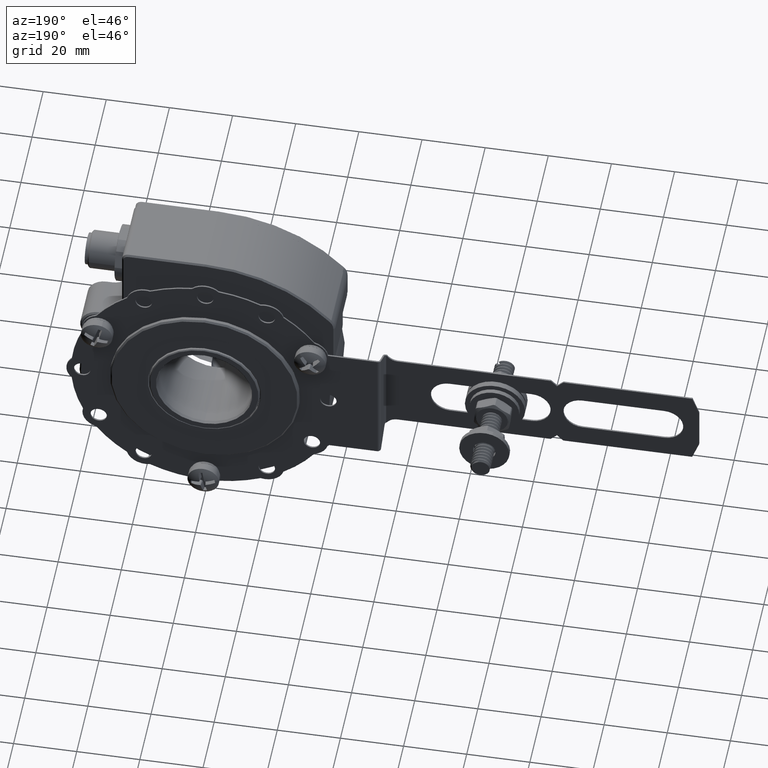
[diagram: clean part render]
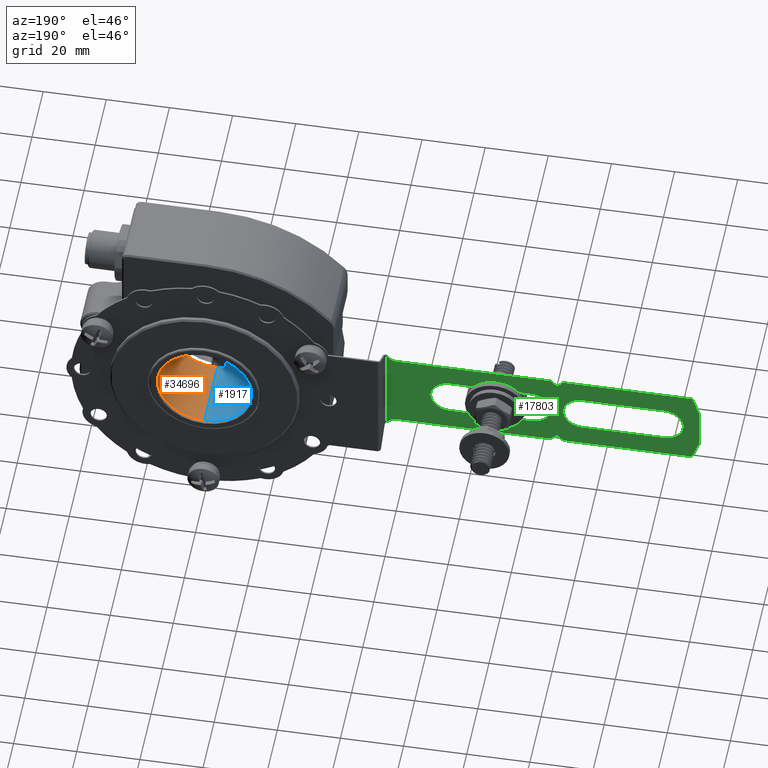
[diagram: same view with three faces highlighted in distinct colors, each labeled with its STEP entity id]
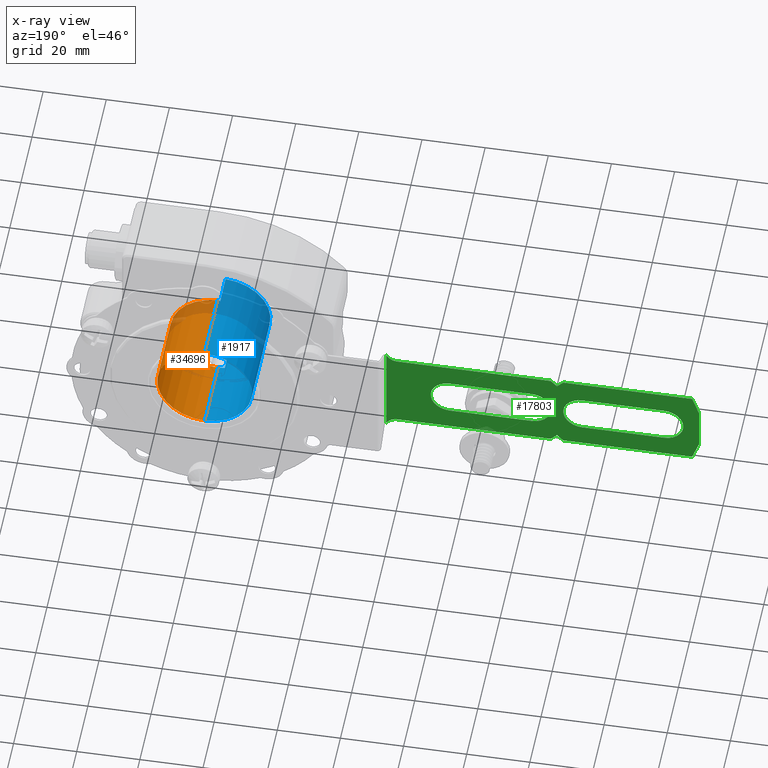
[diagram: x-ray of the same camera — body ghosted, the three highlighted faces saturated]
A machine part, auxiliary view with three faces highlighted in distinct colors.
The next image is the same camera in x-ray (body ghosted, the three faces saturated) — at least one of them is partly hidden behind the body in this view.
Their STEP definitions:

[orange] entity #34696 — the highlighted cylindrical surface (partial cylindrical patch) has radius 15 mm, axis along (-0, 1, -0).
#1490 = EDGE_CURVE ( 'NONE', #17980, #24134, #15536, .T. ) ;
#1554 = CIRCLE ( 'NONE', #9970, 15.00000000000003900 ) ;
#1938 = CARTESIAN_POINT ( 'NONE',  ( 6.388873209477782200E-015, 23.49999999999981200, 15.00000000000000000 ) ) ;
#2078 = CARTESIAN_POINT ( 'NONE',  ( 6.560508871261082500E-015, 23.49999999999980500, -15.00000000000000000 ) ) ;
#3756 = CYLINDRICAL_SURFACE ( 'NONE', #4188, 15.00000000000003900 ) ;
#4181 = DIRECTION ( 'NONE',  ( 2.595898490415523800E-017, -1.000000000000000000, 8.210640952288585300E-017 ) ) ;
#4188 = AXIS2_PLACEMENT_3D ( 'NONE', #46832, #7071, #36073 ) ;
#4723 = VECTOR ( 'NONE', #40104, 1000.000000000000000 ) ;
#4767 = VECTOR ( 'NONE', #14035, 1000.000000000000000 ) ;
#5869 = LINE ( 'NONE', #32993, #4723 ) ;
#7071 = DIRECTION ( 'NONE',  ( -2.595898490415521000E-017, 1.000000000000000000, -1.819323224170026400E-016 ) ) ;
#8027 = VERTEX_POINT ( 'NONE', #2078 ) ;
#8902 = EDGE_CURVE ( 'NONE', #24134, #8027, #1554, .T. ) ;
#9970 = AXIS2_PLACEMENT_3D ( 'NONE', #42492, #20779, #46094 ) ;
#12941 = EDGE_CURVE ( 'NONE', #26620, #17980, #38186, .T. ) ;
#14035 = DIRECTION ( 'NONE',  ( -2.595898490415521000E-017, 1.000000000000000000, -1.819323224170026400E-016 ) ) ;
#15536 = LINE ( 'NONE', #27047, #4767 ) ;
#16800 = FACE_OUTER_BOUND ( 'NONE', #34123, .T. ) ;
#17980 = VERTEX_POINT ( 'NONE', #31086 ) ;
#20779 = DIRECTION ( 'NONE',  ( -2.595898490415521000E-017, 1.000000000000000000, -1.819323224170026400E-016 ) ) ;
#24134 = VERTEX_POINT ( 'NONE', #1938 ) ;
#25886 = CARTESIAN_POINT ( 'NONE',  ( 7.569697237078203200E-015, 0.1999999999999883800, 4.420955434733134700E-015 ) ) ;
#26620 = VERTEX_POINT ( 'NONE', #31036 ) ;
#27047 = CARTESIAN_POINT ( 'NONE',  ( 5.934590973655060700E-015, 24.50000000000000700, 15.00000000000003900 ) ) ;
#29532 = DIRECTION ( 'NONE',  ( -5.551115123125768500E-017, -8.131516293641262300E-017, -1.000000000000000000 ) ) ;
#31036 = CARTESIAN_POINT ( 'NONE',  ( 6.560508871261084900E-015, 0.1999999999999871600, -14.99999999999999500 ) ) ;
#31086 = CARTESIAN_POINT ( 'NONE',  ( 6.388873209477783800E-015, 0.1999999999999896000, 15.00000000000000500 ) ) ;
#32993 = CARTESIAN_POINT ( 'NONE',  ( 6.106226635438361800E-015, 24.50000000000000000, -15.00000000000003900 ) ) ;
#34123 = EDGE_LOOP ( 'NONE', ( #36459, #39403, #46470, #41703 ) ) ;
#34696 = ADVANCED_FACE ( 'NONE', ( #16800 ), #3756, .F. ) ;
#36073 = DIRECTION ( 'NONE',  ( -5.551115123125763000E-017, -2.312964634635736500E-016, -1.000000000000000000 ) ) ;
#36459 = ORIENTED_EDGE ( 'NONE', *, *, #12941, .T. ) ;
#38186 = CIRCLE ( 'NONE', #39544, 15.00000000000003900 ) ;
#39403 = ORIENTED_EDGE ( 'NONE', *, *, #1490, .T. ) ;
#39544 = AXIS2_PLACEMENT_3D ( 'NONE', #25886, #4181, #29532 ) ;
#40104 = DIRECTION ( 'NONE',  ( -2.595898490415521000E-017, 1.000000000000000000, -1.819323224170026400E-016 ) ) ;
#41703 = ORIENTED_EDGE ( 'NONE', *, *, #41962, .F. ) ;
#41962 = EDGE_CURVE ( 'NONE', #26620, #8027, #5869, .T. ) ;
#42492 = CARTESIAN_POINT ( 'NONE',  ( 6.964852888811391600E-015, 23.49999999999980800, 1.819323224170299600E-016 ) ) ;
#46094 = DIRECTION ( 'NONE',  ( 5.551115123125763000E-017, 2.312964634635736500E-016, 1.000000000000000000 ) ) ;
#46470 = ORIENTED_EDGE ( 'NONE', *, *, #8902, .T. ) ;
#46832 = CARTESIAN_POINT ( 'NONE',  ( 6.938893903907228400E-015, 24.50000000000000400, 0.0000000000000000000 ) ) ;

[blue] entity #1917 — the highlighted cylindrical surface (partial cylindrical patch) has radius 15 mm, axis along (-0, 1, -0).
#219 = VERTEX_POINT ( 'NONE', #1522 ) ;
#302 = AXIS2_PLACEMENT_3D ( 'NONE', #42175, #20481, #45786 ) ;
#832 = CIRCLE ( 'NONE', #43007, 15.00000000000003900 ) ;
#1275 = EDGE_CURVE ( 'NONE', #42471, #26620, #832, .T. ) ;
#1490 = EDGE_CURVE ( 'NONE', #17980, #24134, #15536, .T. ) ;
#1522 = CARTESIAN_POINT ( 'NONE',  ( -0.8381259559996437900, -1.400000000000005500, 14.97656652513789800 ) ) ;
#1620 = EDGE_CURVE ( 'NONE', #10822, #34067, #10991, .T. ) ;
#1917 = ADVANCED_FACE ( 'NONE', ( #9275 ), #17765, .F. ) ;
#1938 = CARTESIAN_POINT ( 'NONE',  ( 6.388873209477782200E-015, 23.49999999999981200, 15.00000000000000000 ) ) ;
#2078 = CARTESIAN_POINT ( 'NONE',  ( 6.560508871261082500E-015, 23.49999999999980500, -15.00000000000000000 ) ) ;
#2921 = LINE ( 'NONE', #6645, #11394 ) ;
#3501 = DIRECTION ( 'NONE',  ( 2.595898490415521000E-017, -1.000000000000000000, 1.819323224170026400E-016 ) ) ;
#3647 = CARTESIAN_POINT ( 'NONE',  ( -2.250000000000002200, -9.500000000000108400, -14.83028994996392800 ) ) ;
#4437 = VERTEX_POINT ( 'NONE', #14585 ) ;
#4601 = CARTESIAN_POINT ( 'NONE',  ( -0.8381259559996447900, 0.1999999999999849100, 14.97656652513789800 ) ) ;
#4723 = VECTOR ( 'NONE', #40104, 1000.000000000000000 ) ;
#4767 = VECTOR ( 'NONE', #14035, 1000.000000000000000 ) ;
#5869 = LINE ( 'NONE', #32993, #4723 ) ;
#6200 = EDGE_LOOP ( 'NONE', ( #28331, #39322, #45952, #15021, #25192, #17399, #7150, #45506, #29615, #37783, #13118, #15205 ) ) ;
#6645 = CARTESIAN_POINT ( 'NONE',  ( -0.7999999999999898300, 24.50000000000000000, 14.97865147468227000 ) ) ;
#6844 = CIRCLE ( 'NONE', #28958, 15.00000000000003900 ) ;
#6937 = CARTESIAN_POINT ( 'NONE',  ( -0.8381259559996597800, 0.1999999999999918500, -14.97656652513788900 ) ) ;
#7139 = CARTESIAN_POINT ( 'NONE',  ( -0.8381259559996593300, -0.6000000000000033100, -14.97656652513788700 ) ) ;
#7150 = ORIENTED_EDGE ( 'NONE', *, *, #22777, .T. ) ;
#8027 = VERTEX_POINT ( 'NONE', #2078 ) ;
#8817 = DIRECTION ( 'NONE',  ( 2.595898490415521000E-017, -1.000000000000000000, 1.819323224170038300E-016 ) ) ;
#9004 = CIRCLE ( 'NONE', #42390, 15.00000000000003900 ) ;
#9275 = FACE_OUTER_BOUND ( 'NONE', #6200, .T. ) ;
#10822 = VERTEX_POINT ( 'NONE', #43581 ) ;
#10991 = CIRCLE ( 'NONE', #39669, 15.00000000000003900 ) ;
#11394 = VECTOR ( 'NONE', #39284, 1000.000000000000000 ) ;
#11462 = CARTESIAN_POINT ( 'NONE',  ( 7.569697237078203200E-015, 0.1999999999999883800, 4.420955434733134700E-015 ) ) ;
#13118 = ORIENTED_EDGE ( 'NONE', *, *, #41962, .T. ) ;
#14035 = DIRECTION ( 'NONE',  ( -2.595898490415521000E-017, 1.000000000000000000, -1.819323224170026400E-016 ) ) ;
#14585 = CARTESIAN_POINT ( 'NONE',  ( -0.7999999999999893900, -1.400000000000005500, 14.97865147468227300 ) ) ;
#14684 = EDGE_CURVE ( 'NONE', #4437, #10822, #2921, .T. ) ;
#15021 = ORIENTED_EDGE ( 'NONE', *, *, #27462, .F. ) ;
#15114 = DIRECTION ( 'NONE',  ( -5.551115123125768500E-017, -8.131516293641262300E-017, -1.000000000000000000 ) ) ;
#15205 = ORIENTED_EDGE ( 'NONE', *, *, #44370, .T. ) ;
#15536 = LINE ( 'NONE', #27047, #4767 ) ;
#16039 = EDGE_CURVE ( 'NONE', #42471, #36789, #34546, .T. ) ;
#16080 = VECTOR ( 'NONE', #44028, 1000.000000000000000 ) ;
#16520 = EDGE_CURVE ( 'NONE', #36789, #25853, #9004, .T. ) ;
#17399 = ORIENTED_EDGE ( 'NONE', *, *, #1620, .T. ) ;
#17765 = CYLINDRICAL_SURFACE ( 'NONE', #43626, 15.00000000000003900 ) ;
#17980 = VERTEX_POINT ( 'NONE', #31086 ) ;
#18207 = DIRECTION ( 'NONE',  ( -2.595898490415521000E-017, 1.000000000000000000, -1.819323224170026400E-016 ) ) ;
#20481 = DIRECTION ( 'NONE',  ( 2.595898490415521000E-017, -1.000000000000000000, 1.819323224170026400E-016 ) ) ;
#20864 = DIRECTION ( 'NONE',  ( -2.595898490415521000E-017, 1.000000000000000000, -1.819323224170026400E-016 ) ) ;
#21296 = CIRCLE ( 'NONE', #302, 15.00000000000003900 ) ;
#22312 = CARTESIAN_POINT ( 'NONE',  ( -0.8381259559996437900, -0.6000000000000103000, 14.97656652513789900 ) ) ;
#22777 = EDGE_CURVE ( 'NONE', #34067, #25853, #25060, .T. ) ;
#24134 = VERTEX_POINT ( 'NONE', #1938 ) ;
#24808 = DIRECTION ( 'NONE',  ( -5.551115123125763000E-017, -2.312964634635736500E-016, -1.000000000000000000 ) ) ;
#24924 = VECTOR ( 'NONE', #3501, 1000.000000000000000 ) ;
#25060 = LINE ( 'NONE', #42817, #31303 ) ;
#25089 = CIRCLE ( 'NONE', #41953, 15.00000000000003900 ) ;
#25192 = ORIENTED_EDGE ( 'NONE', *, *, #14684, .T. ) ;
#25853 = VERTEX_POINT ( 'NONE', #26169 ) ;
#26169 = CARTESIAN_POINT ( 'NONE',  ( -2.249999999999999100, 0.09999999999997510900, -14.83028994996392500 ) ) ;
#26620 = VERTEX_POINT ( 'NONE', #31036 ) ;
#27047 = CARTESIAN_POINT ( 'NONE',  ( 5.934590973655060700E-015, 24.50000000000000700, 15.00000000000003900 ) ) ;
#27462 = EDGE_CURVE ( 'NONE', #4437, #219, #21296, .T. ) ;
#28331 = ORIENTED_EDGE ( 'NONE', *, *, #1490, .F. ) ;
#28958 = AXIS2_PLACEMENT_3D ( 'NONE', #42581, #20864, #46183 ) ;
#29023 = EDGE_CURVE ( 'NONE', #17980, #46850, #25089, .T. ) ;
#29615 = ORIENTED_EDGE ( 'NONE', *, *, #16039, .F. ) ;
#29642 = CARTESIAN_POINT ( 'NONE',  ( -0.8381259559996597800, 0.1000000000000028600, -14.97656652513788500 ) ) ;
#30541 = CARTESIAN_POINT ( 'NONE',  ( 7.821499390648511400E-015, -9.500000000000081700, 6.185698962178092800E-015 ) ) ;
#31036 = CARTESIAN_POINT ( 'NONE',  ( 6.560508871261084900E-015, 0.1999999999999871600, -14.99999999999999500 ) ) ;
#31086 = CARTESIAN_POINT ( 'NONE',  ( 6.388873209477783800E-015, 0.1999999999999896000, 15.00000000000000500 ) ) ;
#31303 = VECTOR ( 'NONE', #35355, 1000.000000000000000 ) ;
#32114 = CARTESIAN_POINT ( 'NONE',  ( 6.938893903907228400E-015, 24.50000000000000400, 0.0000000000000000000 ) ) ;
#32993 = CARTESIAN_POINT ( 'NONE',  ( 6.106226635438361800E-015, 24.50000000000000000, -15.00000000000003900 ) ) ;
#33055 = CARTESIAN_POINT ( 'NONE',  ( 7.569697237078203200E-015, 0.1999999999999883800, 4.420955434733134700E-015 ) ) ;
#33821 = DIRECTION ( 'NONE',  ( -1.337818744673313600E-014, -8.131516293641262300E-017, -1.000000000000000000 ) ) ;
#34067 = VERTEX_POINT ( 'NONE', #3647 ) ;
#34181 = DIRECTION ( 'NONE',  ( -5.551115123125763000E-017, -2.312964634635736500E-016, -1.000000000000000000 ) ) ;
#34546 = LINE ( 'NONE', #7139, #24924 ) ;
#35355 = DIRECTION ( 'NONE',  ( -2.595898490415521000E-017, 1.000000000000000000, -1.819323224170026400E-016 ) ) ;
#35738 = DIRECTION ( 'NONE',  ( -2.595898490415521000E-017, 1.000000000000000000, -1.819323224170026400E-016 ) ) ;
#36500 = LINE ( 'NONE', #22312, #16080 ) ;
#36789 = VERTEX_POINT ( 'NONE', #29642 ) ;
#36827 = DIRECTION ( 'NONE',  ( 2.595898490415523800E-017, -1.000000000000000000, 8.210640952288585300E-017 ) ) ;
#37783 = ORIENTED_EDGE ( 'NONE', *, *, #1275, .T. ) ;
#39284 = DIRECTION ( 'NONE',  ( 2.595898490415521000E-017, -1.000000000000000000, 1.819323224170026400E-016 ) ) ;
#39322 = ORIENTED_EDGE ( 'NONE', *, *, #29023, .T. ) ;
#39669 = AXIS2_PLACEMENT_3D ( 'NONE', #30541, #8817, #34181 ) ;
#39923 = CARTESIAN_POINT ( 'NONE',  ( 7.572293135568616500E-015, 0.09999999999999939500, 4.439148666974812100E-015 ) ) ;
#40104 = DIRECTION ( 'NONE',  ( -2.595898490415521000E-017, 1.000000000000000000, -1.819323224170026400E-016 ) ) ;
#41660 = EDGE_CURVE ( 'NONE', #219, #46850, #36500, .T. ) ;
#41953 = AXIS2_PLACEMENT_3D ( 'NONE', #11462, #36827, #15114 ) ;
#41962 = EDGE_CURVE ( 'NONE', #26620, #8027, #5869, .T. ) ;
#42175 = CARTESIAN_POINT ( 'NONE',  ( 7.611231612924849500E-015, -1.400000000000001900, 4.712047150600318700E-015 ) ) ;
#42390 = AXIS2_PLACEMENT_3D ( 'NONE', #39923, #18207, #43578 ) ;
#42471 = VERTEX_POINT ( 'NONE', #6937 ) ;
#42581 = CARTESIAN_POINT ( 'NONE',  ( 6.964852888811391600E-015, 23.49999999999980800, 1.819323224170299600E-016 ) ) ;
#42817 = CARTESIAN_POINT ( 'NONE',  ( -2.250000000000003600, 24.50000000000000700, -14.83028994996393000 ) ) ;
#43007 = AXIS2_PLACEMENT_3D ( 'NONE', #33055, #43813, #33821 ) ;
#43578 = DIRECTION ( 'NONE',  ( 5.551115123125763000E-017, 1.816038638913215200E-016, 1.000000000000000000 ) ) ;
#43581 = CARTESIAN_POINT ( 'NONE',  ( -0.7999999999999890500, -9.500000000000081700, 14.97865147468226400 ) ) ;
#43626 = AXIS2_PLACEMENT_3D ( 'NONE', #32114, #35738, #24808 ) ;
#43813 = DIRECTION ( 'NONE',  ( 2.595898490415523800E-017, -1.000000000000000000, 8.210640952288585300E-017 ) ) ;
#44028 = DIRECTION ( 'NONE',  ( -2.595898490415521000E-017, 1.000000000000000000, -1.819323224170026400E-016 ) ) ;
#44370 = EDGE_CURVE ( 'NONE', #8027, #24134, #6844, .T. ) ;
#45506 = ORIENTED_EDGE ( 'NONE', *, *, #16520, .F. ) ;
#45786 = DIRECTION ( 'NONE',  ( -5.551115123125763000E-017, -1.879283765641536000E-016, -1.000000000000000000 ) ) ;
#45952 = ORIENTED_EDGE ( 'NONE', *, *, #41660, .F. ) ;
#46183 = DIRECTION ( 'NONE',  ( 5.551115123125763000E-017, 2.312964634635736500E-016, 1.000000000000000000 ) ) ;
#46850 = VERTEX_POINT ( 'NONE', #4601 ) ;

[green] entity #17803 — the highlighted planar face has unit normal (-0, 1, -0).
#22 = VECTOR ( 'NONE', #21317, 1000.000000000000000 ) ;
#178 = ORIENTED_EDGE ( 'NONE', *, *, #8419, .F. ) ;
#334 = DIRECTION ( 'NONE',  ( 6.568586551522580000E-046, -1.000000000000000000, -3.366400607655322300E-046 ) ) ;
#423 = FACE_OUTER_BOUND ( 'NONE', #31876, .T. ) ;
#868 = VERTEX_POINT ( 'NONE', #25835 ) ;
#1216 = CARTESIAN_POINT ( 'NONE',  ( -59.50000000000002100, 14.49999999999999300, 13.00000000000001800 ) ) ;
#1608 = ORIENTED_EDGE ( 'NONE', *, *, #10131, .T. ) ;
#1811 = CARTESIAN_POINT ( 'NONE',  ( -56.03589838486225700, 14.50000000000000500, 14.99999999999996400 ) ) ;
#1901 = VERTEX_POINT ( 'NONE', #35575 ) ;
#2016 = CARTESIAN_POINT ( 'NONE',  ( -112.0000000000000100, 14.49999999999999300, 13.00000000000006400 ) ) ;
#2478 = CARTESIAN_POINT ( 'NONE',  ( -144.0000000000000900, 14.50000000000000500, 6.000000000000039100 ) ) ;
#2800 = CARTESIAN_POINT ( 'NONE',  ( -59.50000000000003600, 14.49999999999997900, -16.99999999999997900 ) ) ;
#3242 = LINE ( 'NONE', #8646, #21391 ) ;
#3249 = DIRECTION ( 'NONE',  ( -1.000000000000000000, 1.972152263052522900E-031, 3.191891195797323600E-016 ) ) ;
#3254 = DIRECTION ( 'NONE',  ( 6.568586551522580000E-046, -1.000000000000000000, -3.366400607655322300E-046 ) ) ;
#3316 = CARTESIAN_POINT ( 'NONE',  ( -144.0000000000000300, 14.50000000000000500, -5.999999999999944000 ) ) ;
#3416 = LINE ( 'NONE', #23793, #31201 ) ;
#3674 = CARTESIAN_POINT ( 'NONE',  ( -118.0000000000000300, 14.50000000000000500, -6.000000000000007100 ) ) ;
#4347 = LINE ( 'NONE', #34662, #32166 ) ;
#4405 = ORIENTED_EDGE ( 'NONE', *, *, #16087, .T. ) ;
#4436 = VECTOR ( 'NONE', #44774, 1000.000000000000000 ) ;
#4742 = DIRECTION ( 'NONE',  ( 2.914335439641034400E-016, 1.156482317317872200E-016, 1.000000000000000000 ) ) ;
#5120 = ORIENTED_EDGE ( 'NONE', *, *, #15381, .T. ) ;
#5136 = CARTESIAN_POINT ( 'NONE',  ( -55.50000000000002100, 14.50000000000000500, 12.99999999999996300 ) ) ;
#5453 = ORIENTED_EDGE ( 'NONE', *, *, #33193, .T. ) ;
#5547 = DIRECTION ( 'NONE',  ( 6.568586551522580000E-046, -1.000000000000000000, -3.366400607655322300E-046 ) ) ;
#5789 = EDGE_CURVE ( 'NONE', #9356, #46977, #3416, .T. ) ;
#6246 = DIRECTION ( 'NONE',  ( 6.568586551522580000E-046, -1.000000000000000000, -3.366400607655322300E-046 ) ) ;
#6437 = DIRECTION ( 'NONE',  ( 0.0000000000000000000, 0.0000000000000000000, -1.000000000000000000 ) ) ;
#6505 = CARTESIAN_POINT ( 'NONE',  ( -155.0000000000000300, 14.50000000000000500, -6.999999999999941400 ) ) ;
#6586 = DIRECTION ( 'NONE',  ( -0.7071067811865474600, 8.177564888978012700E-017, 0.7071067811865474600 ) ) ;
#6983 = DIRECTION ( 'NONE',  ( 1.000000000000000000, -1.972152263052522900E-031, -3.191891195797323600E-016 ) ) ;
#7052 = LINE ( 'NONE', #13726, #34819 ) ;
#7390 = ORIENTED_EDGE ( 'NONE', *, *, #17920, .T. ) ;
#7718 = VERTEX_POINT ( 'NONE', #18426 ) ;
#7826 = CARTESIAN_POINT ( 'NONE',  ( -101.9999999999999900, 14.49999999999999300, 6.000000000000025800 ) ) ;
#8111 = CARTESIAN_POINT ( 'NONE',  ( -152.8161785944028800, 14.50000000000002000, 13.00000000000004800 ) ) ;
#8419 = EDGE_CURVE ( 'NONE', #1901, #14201, #36734, .T. ) ;
#8646 = CARTESIAN_POINT ( 'NONE',  ( -155.0000000000000600, 14.50000000000000500, 14.99999999999999500 ) ) ;
#9005 = VERTEX_POINT ( 'NONE', #6505 ) ;
#9263 = AXIS2_PLACEMENT_3D ( 'NONE', #22038, #334, #25665 ) ;
#9356 = VERTEX_POINT ( 'NONE', #37528 ) ;
#9379 = DIRECTION ( 'NONE',  ( -0.7071067811865479100, -8.177564888977976900E-017, -0.7071067811865470200 ) ) ;
#9583 = VERTEX_POINT ( 'NONE', #13746 ) ;
#9656 = LINE ( 'NONE', #46650, #28915 ) ;
#10131 = EDGE_CURVE ( 'NONE', #40987, #33713, #20753, .T. ) ;
#10237 = AXIS2_PLACEMENT_3D ( 'NONE', #19201, #12068, #37422 ) ;
#10337 = VERTEX_POINT ( 'NONE', #3674 ) ;
#11164 = VECTOR ( 'NONE', #19029, 1000.000000000000100 ) ;
#11178 = EDGE_CURVE ( 'NONE', #868, #35926, #7052, .T. ) ;
#11442 = LINE ( 'NONE', #12722, #29581 ) ;
#11680 = LINE ( 'NONE', #37218, #28686 ) ;
#11946 = ORIENTED_EDGE ( 'NONE', *, *, #23974, .F. ) ;
#12068 = DIRECTION ( 'NONE',  ( -3.530871564709996100E-032, 1.000000000000000000, -1.156482317317872200E-016 ) ) ;
#12662 = AXIS2_PLACEMENT_3D ( 'NONE', #27250, #5547, #30917 ) ;
#12722 = CARTESIAN_POINT ( 'NONE',  ( -69.74999999999997200, 14.49999999999999300, 29.24999999999998200 ) ) ;
#12758 = VERTEX_POINT ( 'NONE', #2478 ) ;
#12968 = DIRECTION ( 'NONE',  ( -1.000000000000000000, 1.972152263052522900E-031, 3.191891195797323600E-016 ) ) ;
#13042 = LINE ( 'NONE', #40493, #31203 ) ;
#13069 = LINE ( 'NONE', #28517, #21592 ) ;
#13726 = CARTESIAN_POINT ( 'NONE',  ( -84.75000000000002800, 14.49999999999999300, -14.24999999999999600 ) ) ;
#13746 = CARTESIAN_POINT ( 'NONE',  ( -155.0000000000000600, 14.50000000000000500, 6.999999999999932500 ) ) ;
#14113 = LINE ( 'NONE', #33861, #4436 ) ;
#14201 = VERTEX_POINT ( 'NONE', #21436 ) ;
#15381 = EDGE_CURVE ( 'NONE', #10337, #32973, #45353, .T. ) ;
#15497 = VERTEX_POINT ( 'NONE', #7826 ) ;
#15925 = DIRECTION ( 'NONE',  ( 6.568586551522580000E-046, -1.000000000000000000, -3.366400607655322300E-046 ) ) ;
#16087 = EDGE_CURVE ( 'NONE', #33145, #36349, #23767, .T. ) ;
#16949 = CARTESIAN_POINT ( 'NONE',  ( -55.50000000000002800, 14.49999999999999300, -6.000000000000025800 ) ) ;
#17344 = VERTEX_POINT ( 'NONE', #44900 ) ;
#17535 = VECTOR ( 'NONE', #20614, 1000.000000000000000 ) ;
#17603 = ORIENTED_EDGE ( 'NONE', *, *, #33158, .T. ) ;
#17641 = DIRECTION ( 'NONE',  ( 1.000000000000000000, -1.972152263052522900E-031, -3.191891195797323600E-016 ) ) ;
#17764 = EDGE_CURVE ( 'NONE', #22793, #9583, #20842, .T. ) ;
#17803 = ADVANCED_FACE ( 'NONE', ( #423, #31625, #29313 ), #33780, .T. ) ;
#17920 = EDGE_CURVE ( 'NONE', #15497, #46350, #42936, .T. ) ;
#18177 = CARTESIAN_POINT ( 'NONE',  ( -117.9999999999999900, 14.50000000000000500, 6.000000000000031100 ) ) ;
#18251 = VERTEX_POINT ( 'NONE', #3316 ) ;
#18426 = CARTESIAN_POINT ( 'NONE',  ( -108.0000000000000300, 14.49999999999997900, -12.99999999999996100 ) ) ;
#18503 = AXIS2_PLACEMENT_3D ( 'NONE', #27930, #6246, #31609 ) ;
#18835 = ORIENTED_EDGE ( 'NONE', *, *, #24180, .F. ) ;
#18945 = EDGE_CURVE ( 'NONE', #9583, #9005, #3242, .T. ) ;
#19029 = DIRECTION ( 'NONE',  ( -0.3420201433256674900, -1.086737899652992200E-016, -0.9396926207859088700 ) ) ;
#19066 = CARTESIAN_POINT ( 'NONE',  ( -107.9999999999999900, 14.49999999999999300, 13.00000000000003400 ) ) ;
#19201 = CARTESIAN_POINT ( 'NONE',  ( -55.50000000000002100, 14.50000000000000500, 14.99999999999996400 ) ) ;
#19289 = LINE ( 'NONE', #32108, #22 ) ;
#19668 = EDGE_CURVE ( 'NONE', #46977, #44334, #11680, .T. ) ;
#20340 = ORIENTED_EDGE ( 'NONE', *, *, #30501, .T. ) ;
#20614 = DIRECTION ( 'NONE',  ( 1.000000000000000000, -1.972152263052522900E-031, -3.191891195797323600E-016 ) ) ;
#20753 = CIRCLE ( 'NONE', #18503, 6.000000000000000900 ) ;
#20841 = DIRECTION ( 'NONE',  ( -2.914335439641034400E-016, -1.156482317317872200E-016, -1.000000000000000000 ) ) ;
#20842 = LINE ( 'NONE', #8111, #11164 ) ;
#20847 = ORIENTED_EDGE ( 'NONE', *, *, #19668, .F. ) ;
#21153 = CARTESIAN_POINT ( 'NONE',  ( -55.50000000000004300, 14.49999999999997900, -12.99999999999997700 ) ) ;
#21317 = DIRECTION ( 'NONE',  ( 1.000000000000000000, -1.972152263052522900E-031, -3.191891195797323600E-016 ) ) ;
#21391 = VECTOR ( 'NONE', #20841, 1000.000000000000000 ) ;
#21436 = CARTESIAN_POINT ( 'NONE',  ( -112.0000000000000300, 14.49999999999997900, -12.99999999999995900 ) ) ;
#21592 = VECTOR ( 'NONE', #6983, 1000.000000000000000 ) ;
#21628 = ORIENTED_EDGE ( 'NONE', *, *, #28816, .T. ) ;
#22038 = CARTESIAN_POINT ( 'NONE',  ( -59.50000000000002100, 14.49999999999999300, 17.00000000000002100 ) ) ;
#22793 = VERTEX_POINT ( 'NONE', #25056 ) ;
#23171 = CARTESIAN_POINT ( 'NONE',  ( -75.99999999999998600, 14.49999999999999300, 6.000000000000018700 ) ) ;
#23223 = VECTOR ( 'NONE', #9379, 1000.000000000000100 ) ;
#23378 = CIRCLE ( 'NONE', #40451, 4.000000000000003600 ) ;
#23638 = DIRECTION ( 'NONE',  ( 1.000000000000000000, -1.972152263052522900E-031, -3.191891195797323600E-016 ) ) ;
#23713 = CIRCLE ( 'NONE', #41213, 6.000000000000000900 ) ;
#23767 = CIRCLE ( 'NONE', #9263, 4.000000000000005300 ) ;
#23793 = CARTESIAN_POINT ( 'NONE',  ( -55.50000000000004300, 14.49999999999997900, -14.99999999999997900 ) ) ;
#23974 = EDGE_CURVE ( 'NONE', #9005, #1901, #13042, .T. ) ;
#24009 = EDGE_CURVE ( 'NONE', #46789, #7718, #30050, .T. ) ;
#24115 = AXIS2_PLACEMENT_3D ( 'NONE', #24974, #3254, #28588 ) ;
#24180 = EDGE_CURVE ( 'NONE', #44804, #868, #32900, .T. ) ;
#24338 = EDGE_CURVE ( 'NONE', #18251, #10337, #37977, .T. ) ;
#24933 = EDGE_LOOP ( 'NONE', ( #44871, #7390, #27194, #1608 ) ) ;
#24974 = CARTESIAN_POINT ( 'NONE',  ( -118.0000000000000100, 14.50000000000000500, -2.145058162183871600E-015 ) ) ;
#25056 = CARTESIAN_POINT ( 'NONE',  ( -152.8161785944028800, 14.50000000000002000, 13.00000000000004800 ) ) ;
#25665 = DIRECTION ( 'NONE',  ( 0.0000000000000000000, 0.0000000000000000000, -1.000000000000000000 ) ) ;
#25835 = CARTESIAN_POINT ( 'NONE',  ( -110.0000000000000400, 14.49999999999999300, 11.00000000000003200 ) ) ;
#26072 = ORIENTED_EDGE ( 'NONE', *, *, #5789, .F. ) ;
#26584 = ORIENTED_EDGE ( 'NONE', *, *, #24338, .T. ) ;
#26827 = DIRECTION ( 'NONE',  ( 1.000000000000000000, -1.972152263052522900E-031, -3.191891195797323600E-016 ) ) ;
#26869 = DIRECTION ( 'NONE',  ( 1.000000000000000000, -1.972152263052522900E-031, -3.191891195797323600E-016 ) ) ;
#27194 = ORIENTED_EDGE ( 'NONE', *, *, #44576, .T. ) ;
#27250 = CARTESIAN_POINT ( 'NONE',  ( -102.0000000000000100, 14.49999999999999300, -7.030039470534558400E-015 ) ) ;
#27315 = VECTOR ( 'NONE', #26827, 1000.000000000000000 ) ;
#27621 = VECTOR ( 'NONE', #26869, 1000.000000000000000 ) ;
#27930 = CARTESIAN_POINT ( 'NONE',  ( -76.00000000000001400, 14.49999999999999300, 1.278744151902447900E-014 ) ) ;
#28115 = DIRECTION ( 'NONE',  ( 6.568586551522580000E-046, -1.000000000000000000, -3.366400607655322300E-046 ) ) ;
#28362 = ORIENTED_EDGE ( 'NONE', *, *, #24009, .F. ) ;
#28517 = CARTESIAN_POINT ( 'NONE',  ( -55.50000000000002100, 14.50000000000000500, 14.99999999999996400 ) ) ;
#28588 = DIRECTION ( 'NONE',  ( 0.0000000000000000000, 0.0000000000000000000, -1.000000000000000000 ) ) ;
#28686 = VECTOR ( 'NONE', #4742, 1000.000000000000000 ) ;
#28816 = EDGE_CURVE ( 'NONE', #9356, #17344, #23378, .T. ) ;
#28915 = VECTOR ( 'NONE', #3249, 1000.000000000000000 ) ;
#29313 = FACE_BOUND ( 'NONE', #24933, .T. ) ;
#29581 = VECTOR ( 'NONE', #33644, 1000.000000000000000 ) ;
#29837 = ORIENTED_EDGE ( 'NONE', *, *, #11178, .F. ) ;
#30050 = LINE ( 'NONE', #40636, #40843 ) ;
#30501 = EDGE_CURVE ( 'NONE', #36349, #44334, #13069, .T. ) ;
#30917 = DIRECTION ( 'NONE',  ( 0.0000000000000000000, 0.0000000000000000000, -1.000000000000000000 ) ) ;
#31201 = VECTOR ( 'NONE', #23638, 1000.000000000000000 ) ;
#31203 = VECTOR ( 'NONE', #44119, 1000.000000000000100 ) ;
#31609 = DIRECTION ( 'NONE',  ( 0.0000000000000000000, 0.0000000000000000000, -1.000000000000000000 ) ) ;
#31625 = FACE_BOUND ( 'NONE', #36988, .T. ) ;
#31876 = EDGE_LOOP ( 'NONE', ( #40368, #178, #11946, #37230, #43505, #36190, #29837, #18835, #17603, #4405, #20340, #20847, #26072, #21628, #35864, #28362 ) ) ;
#32108 = CARTESIAN_POINT ( 'NONE',  ( -55.50000000000002800, 14.49999999999999300, -6.000000000000025800 ) ) ;
#32166 = VECTOR ( 'NONE', #12968, 1000.000000000000000 ) ;
#32838 = CARTESIAN_POINT ( 'NONE',  ( -109.9999999999999700, 14.49999999999997900, -10.99999999999995900 ) ) ;
#32900 = LINE ( 'NONE', #45495, #23223 ) ;
#32973 = VERTEX_POINT ( 'NONE', #18177 ) ;
#33145 = VERTEX_POINT ( 'NONE', #1216 ) ;
#33158 = EDGE_CURVE ( 'NONE', #44804, #33145, #14113, .T. ) ;
#33193 = EDGE_CURVE ( 'NONE', #12758, #18251, #23713, .T. ) ;
#33346 = DIRECTION ( 'NONE',  ( 0.7071067811865476800, -8.177564888978013900E-017, -0.7071067811865474600 ) ) ;
#33644 = DIRECTION ( 'NONE',  ( 0.7071067811865481300, 8.177564888977979400E-017, 0.7071067811865470200 ) ) ;
#33713 = VERTEX_POINT ( 'NONE', #23171 ) ;
#33780 = PLANE ( 'NONE',  #10237 ) ;
#33861 = CARTESIAN_POINT ( 'NONE',  ( -55.50000000000002100, 14.50000000000000500, 12.99999999999996300 ) ) ;
#33882 = CARTESIAN_POINT ( 'NONE',  ( -55.50000000000004300, 14.49999999999997900, -12.99999999999997700 ) ) ;
#34433 = EDGE_CURVE ( 'NONE', #32973, #12758, #4347, .T. ) ;
#34662 = CARTESIAN_POINT ( 'NONE',  ( -55.50000000000003600, 14.49999999999999300, 6.000000000000012400 ) ) ;
#34819 = VECTOR ( 'NONE', #6586, 1000.000000000000100 ) ;
#35125 = CARTESIAN_POINT ( 'NONE',  ( -56.00000000000002100, 14.50000000000000500, 14.99999999999996400 ) ) ;
#35505 = ORIENTED_EDGE ( 'NONE', *, *, #34433, .T. ) ;
#35575 = CARTESIAN_POINT ( 'NONE',  ( -152.8161785944027700, 14.49999999999999300, -13.00000000000000400 ) ) ;
#35864 = ORIENTED_EDGE ( 'NONE', *, *, #38784, .F. ) ;
#35926 = VERTEX_POINT ( 'NONE', #2016 ) ;
#36190 = ORIENTED_EDGE ( 'NONE', *, *, #43074, .T. ) ;
#36349 = VERTEX_POINT ( 'NONE', #1811 ) ;
#36478 = CARTESIAN_POINT ( 'NONE',  ( -102.0000000000000300, 14.49999999999999300, -6.000000000000012400 ) ) ;
#36734 = LINE ( 'NONE', #21153, #46369 ) ;
#36972 = LINE ( 'NONE', #5136, #27315 ) ;
#36988 = EDGE_LOOP ( 'NONE', ( #35505, #5453, #26584, #5120 ) ) ;
#37218 = CARTESIAN_POINT ( 'NONE',  ( -56.00000000000002100, 14.50000000000000500, 14.99999999999996400 ) ) ;
#37230 = ORIENTED_EDGE ( 'NONE', *, *, #18945, .F. ) ;
#37400 = CARTESIAN_POINT ( 'NONE',  ( -56.00000000000004300, 14.49999999999997900, -14.99999999999997900 ) ) ;
#37422 = DIRECTION ( 'NONE',  ( 2.914335439641034400E-016, 1.156482317317872200E-016, 1.000000000000000000 ) ) ;
#37528 = CARTESIAN_POINT ( 'NONE',  ( -56.03589838486227800, 14.49999999999997900, -14.99999999999997900 ) ) ;
#37660 = CARTESIAN_POINT ( 'NONE',  ( -144.0000000000000600, 14.50000000000000500, 6.130418769514382400E-014 ) ) ;
#37977 = LINE ( 'NONE', #16949, #17535 ) ;
#38784 = EDGE_CURVE ( 'NONE', #7718, #17344, #46905, .T. ) ;
#40368 = ORIENTED_EDGE ( 'NONE', *, *, #46455, .F. ) ;
#40451 = AXIS2_PLACEMENT_3D ( 'NONE', #2800, #28115, #6437 ) ;
#40493 = CARTESIAN_POINT ( 'NONE',  ( -152.8161785944027700, 14.49999999999999300, -13.00000000000000400 ) ) ;
#40636 = CARTESIAN_POINT ( 'NONE',  ( -95.75000000000002800, 14.49999999999997900, -25.24999999999995000 ) ) ;
#40843 = VECTOR ( 'NONE', #33346, 1000.000000000000000 ) ;
#40987 = VERTEX_POINT ( 'NONE', #46921 ) ;
#41213 = AXIS2_PLACEMENT_3D ( 'NONE', #37660, #15925, #41313 ) ;
#41313 = DIRECTION ( 'NONE',  ( 0.0000000000000000000, 0.0000000000000000000, -1.000000000000000000 ) ) ;
#42936 = CIRCLE ( 'NONE', #12662, 6.000000000000000000 ) ;
#43074 = EDGE_CURVE ( 'NONE', #22793, #35926, #36972, .T. ) ;
#43505 = ORIENTED_EDGE ( 'NONE', *, *, #17764, .F. ) ;
#44119 = DIRECTION ( 'NONE',  ( 0.3420201433256668800, -1.086737899652993300E-016, -0.9396926207859090900 ) ) ;
#44334 = VERTEX_POINT ( 'NONE', #35125 ) ;
#44576 = EDGE_CURVE ( 'NONE', #46350, #40987, #19289, .T. ) ;
#44578 = EDGE_CURVE ( 'NONE', #33713, #15497, #9656, .T. ) ;
#44774 = DIRECTION ( 'NONE',  ( 1.000000000000000000, -1.972152263052522900E-031, -3.191891195797323600E-016 ) ) ;
#44804 = VERTEX_POINT ( 'NONE', #19066 ) ;
#44871 = ORIENTED_EDGE ( 'NONE', *, *, #44578, .T. ) ;
#44900 = CARTESIAN_POINT ( 'NONE',  ( -59.50000000000003600, 14.49999999999997900, -12.99999999999997700 ) ) ;
#45353 = CIRCLE ( 'NONE', #24115, 5.999999999999999100 ) ;
#45495 = CARTESIAN_POINT ( 'NONE',  ( -80.75000000000000000, 14.49999999999997900, 40.25000000000002100 ) ) ;
#46350 = VERTEX_POINT ( 'NONE', #36478 ) ;
#46369 = VECTOR ( 'NONE', #17641, 1000.000000000000000 ) ;
#46455 = EDGE_CURVE ( 'NONE', #14201, #46789, #11442, .T. ) ;
#46650 = CARTESIAN_POINT ( 'NONE',  ( -55.50000000000003600, 14.49999999999999300, 6.000000000000012400 ) ) ;
#46789 = VERTEX_POINT ( 'NONE', #32838 ) ;
#46905 = LINE ( 'NONE', #33882, #27621 ) ;
#46921 = CARTESIAN_POINT ( 'NONE',  ( -76.00000000000004300, 14.49999999999999300, -5.999999999999964500 ) ) ;
#46977 = VERTEX_POINT ( 'NONE', #37400 ) ;